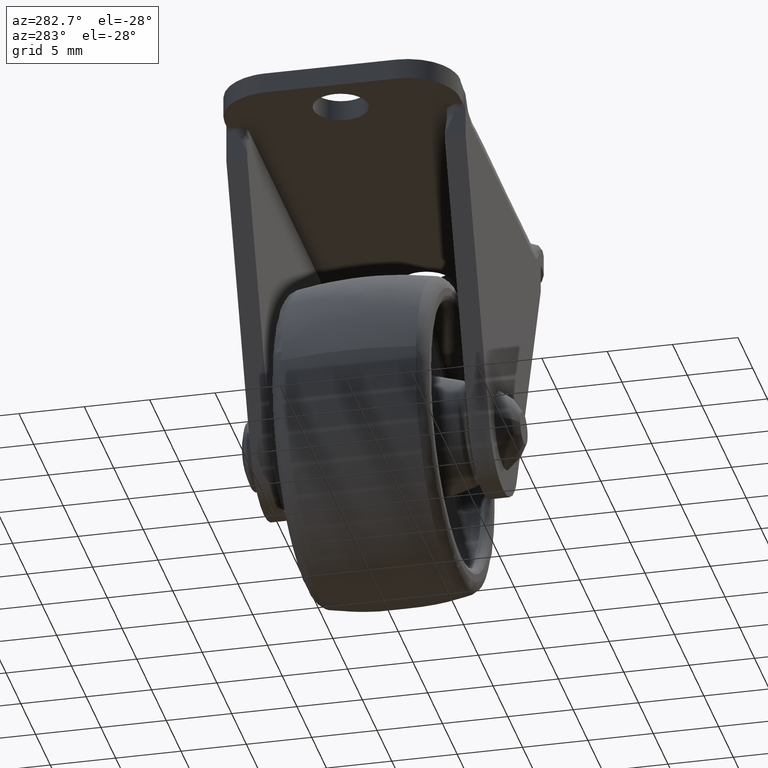
[diagram: clean part render]
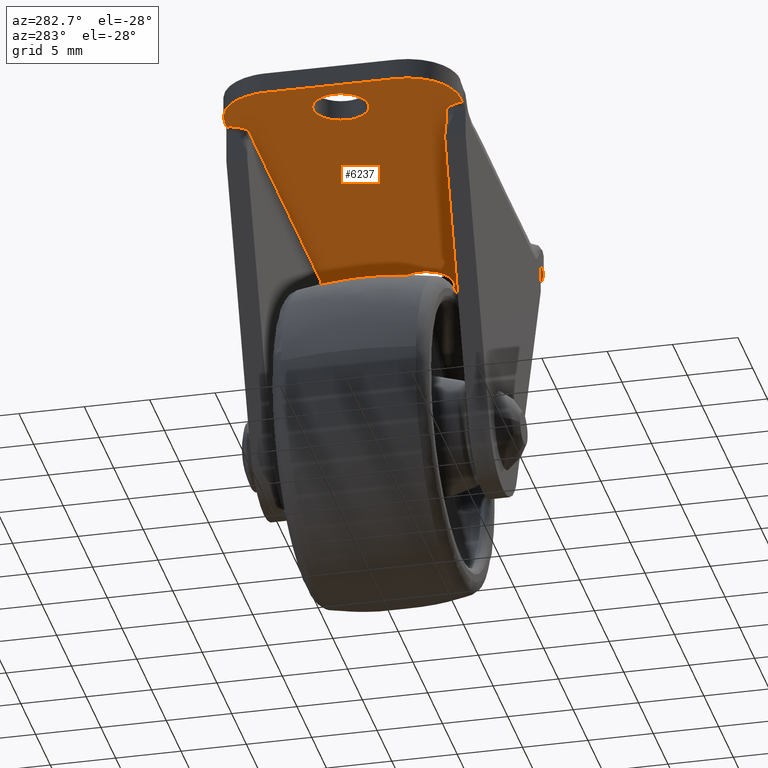
[diagram: same view with one face highlighted and labeled with its STEP entity id]
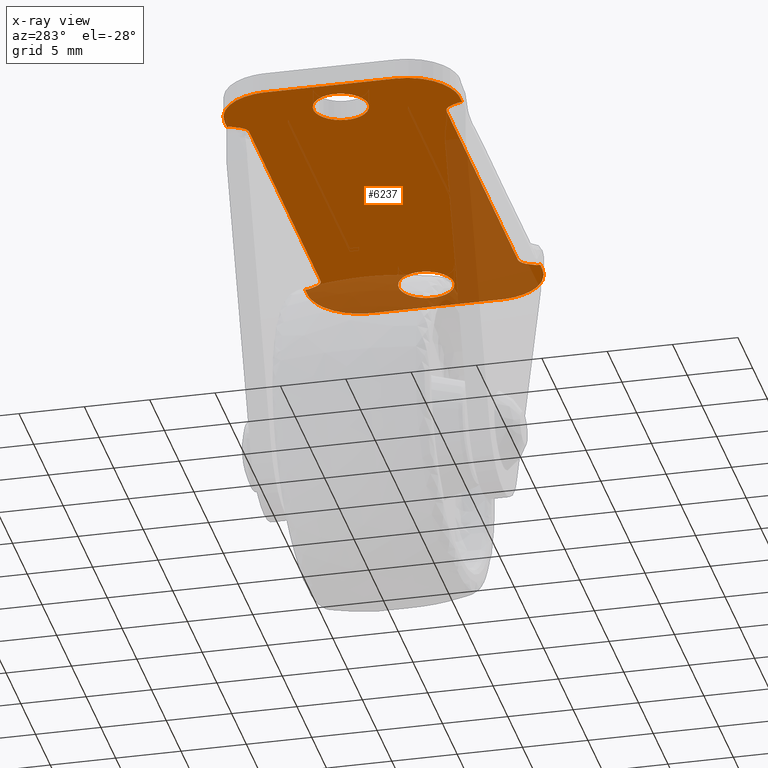
[diagram: x-ray of the same camera — body ghosted, the highlighted face saturated]
A machine part, auxiliary view. The second image highlights one B-rep face of the part: STEP entity #6237.
The next image is the same camera in x-ray: the body ghosted, the highlighted face saturated — about 25% of this face is hidden behind the body in this view.
In plain terms, the highlighted face is a freeform B-spline surface patch.
Its self-contained STEP definition (entity closure, byte-faithful):
#3199=CARTESIAN_POINT('',(-14.747871892840189,-2.085320005356449,20.899999999999999));
#3200=VERTEX_POINT('',#3199);
#3201=CARTESIAN_POINT('',(-12.400000000000000,0.0,20.899999999999999));
#3202=VERTEX_POINT('',#3201);
#3203=CARTESIAN_POINT('',(-14.747871892840186,-2.085320005356449,20.899999999999995));
#3204=CARTESIAN_POINT('',(-14.624370651330652,-2.100000000000000,20.899999999999999));
#3205=CARTESIAN_POINT('',(-14.500000000000000,-2.100000000000000,20.899999999999999));
#3206=CARTESIAN_POINT('',(-12.400000000000002,-2.100000000000000,20.899999999999995));
#3207=CARTESIAN_POINT('',(-12.400000000000000,0.0,20.899999999999999));
#3215=(BOUNDED_CURVE()B_SPLINE_CURVE(2,(#3203,#3204,#3205,#3206,#3207),.UNSPECIFIED.,.F.,.U.)B_SPLINE_CURVE_WITH_KNOTS((3,2,3),(0.229562473505758,0.250000000000000,0.500000000000000),.UNSPECIFIED.)CURVE()GEOMETRIC_REPRESENTATION_ITEM()RATIONAL_B_SPLINE_CURVE((0.956026754168508,0.976055948322065,1.0,0.707106781186548,1.0))REPRESENTATION_ITEM(''));
#3216=EDGE_CURVE('',#3200,#3202,#3215,.T.);
#3257=CARTESIAN_POINT('',(-14.371798066948950,2.096083076684217,20.899999999999999));
#3258=VERTEX_POINT('',#3257);
#3264=CARTESIAN_POINT('',(-12.400000000000000,0.0,20.899999999999999));
#3265=CARTESIAN_POINT('',(-12.400000000000002,1.975482740449377,20.899999999999999));
#3266=CARTESIAN_POINT('',(-14.371798066948953,2.096083076684217,20.899999999999999));
#3274=(BOUNDED_CURVE()B_SPLINE_CURVE(2,(#3264,#3265,#3266),.UNSPECIFIED.,.F.,.U.)B_SPLINE_CURVE_WITH_KNOTS((3,3),(0.500000000000000,0.739332962237384),.UNSPECIFIED.)CURVE()GEOMETRIC_REPRESENTATION_ITEM()RATIONAL_B_SPLINE_CURVE((1.0,0.719603993288536,0.976072041663377))REPRESENTATION_ITEM(''));
#3275=EDGE_CURVE('',#3202,#3258,#3274,.T.);
#3298=CARTESIAN_POINT('',(-16.600000000000001,0.0,20.899999999999999));
#3299=VERTEX_POINT('',#3298);
#3300=CARTESIAN_POINT('',(-16.600000000000001,0.0,20.899999999999999));
#3301=CARTESIAN_POINT('',(-16.599999999999991,-1.865166504387994,20.899999999999995));
#3302=CARTESIAN_POINT('',(-14.747871892840186,-2.085320005356449,20.899999999999995));
#3310=(BOUNDED_CURVE()B_SPLINE_CURVE(2,(#3300,#3301,#3302),.UNSPECIFIED.,.F.,.U.)B_SPLINE_CURVE_WITH_KNOTS((3,3),(0.0,0.229562473505758),.UNSPECIFIED.)CURVE()GEOMETRIC_REPRESENTATION_ITEM()RATIONAL_B_SPLINE_CURVE((1.0,0.731050832864483,0.956026754168508))REPRESENTATION_ITEM(''));
#3311=EDGE_CURVE('',#3299,#3200,#3310,.T.);
#3313=CARTESIAN_POINT('',(-14.371798066948951,2.096083076684217,20.900000000000002));
#3314=CARTESIAN_POINT('',(-14.435839197045032,2.100000000000000,20.899999999999999));
#3315=CARTESIAN_POINT('',(-14.500000000000000,2.100000000000000,20.899999999999999));
#3316=CARTESIAN_POINT('',(-16.600000000000001,2.100000000000000,20.899999999999995));
#3317=CARTESIAN_POINT('',(-16.600000000000001,0.0,20.899999999999999));
#3325=(BOUNDED_CURVE()B_SPLINE_CURVE(2,(#3313,#3314,#3315,#3316,#3317),.UNSPECIFIED.,.F.,.U.)B_SPLINE_CURVE_WITH_KNOTS((3,2,3),(0.739332962237383,0.750000000000000,1.0),.UNSPECIFIED.)CURVE()GEOMETRIC_REPRESENTATION_ITEM()RATIONAL_B_SPLINE_CURVE((0.976072041663375,0.987502787898010,1.0,0.707106781186548,1.0))REPRESENTATION_ITEM(''));
#3326=EDGE_CURVE('',#3258,#3299,#3325,.T.);
#3385=CARTESIAN_POINT('',(14.252128107159811,-2.085320005356449,20.899999999999999));
#3386=VERTEX_POINT('',#3385);
#3387=CARTESIAN_POINT('',(16.600000000000001,0.0,20.899999999999999));
#3388=VERTEX_POINT('',#3387);
#3389=CARTESIAN_POINT('',(14.252128107159818,-2.085320005356449,20.899999999999995));
#3390=CARTESIAN_POINT('',(14.375629348669351,-2.100000000000000,20.899999999999995));
#3391=CARTESIAN_POINT('',(14.500000000000000,-2.100000000000000,20.899999999999999));
#3392=CARTESIAN_POINT('',(16.600000000000001,-2.100000000000000,20.899999999999995));
#3393=CARTESIAN_POINT('',(16.600000000000001,0.0,20.899999999999999));
#3401=(BOUNDED_CURVE()B_SPLINE_CURVE(2,(#3389,#3390,#3391,#3392,#3393),.UNSPECIFIED.,.F.,.U.)B_SPLINE_CURVE_WITH_KNOTS((3,2,3),(0.229562473505758,0.250000000000000,0.500000000000000),.UNSPECIFIED.)CURVE()GEOMETRIC_REPRESENTATION_ITEM()RATIONAL_B_SPLINE_CURVE((0.956026754168508,0.976055948322065,1.0,0.707106781186548,1.0))REPRESENTATION_ITEM(''));
#3402=EDGE_CURVE('',#3386,#3388,#3401,.T.);
#3443=CARTESIAN_POINT('',(14.628201933051050,2.096083076684217,20.899999999999999));
#3444=VERTEX_POINT('',#3443);
#3450=CARTESIAN_POINT('',(16.600000000000001,0.0,20.899999999999999));
#3451=CARTESIAN_POINT('',(16.600000000000009,1.975482740449377,20.899999999999999));
#3452=CARTESIAN_POINT('',(14.628201933051054,2.096083076684217,20.899999999999999));
#3460=(BOUNDED_CURVE()B_SPLINE_CURVE(2,(#3450,#3451,#3452),.UNSPECIFIED.,.F.,.U.)B_SPLINE_CURVE_WITH_KNOTS((3,3),(0.500000000000000,0.739332962237384),.UNSPECIFIED.)CURVE()GEOMETRIC_REPRESENTATION_ITEM()RATIONAL_B_SPLINE_CURVE((1.0,0.719603993288536,0.976072041663377))REPRESENTATION_ITEM(''));
#3461=EDGE_CURVE('',#3388,#3444,#3460,.T.);
#3484=CARTESIAN_POINT('',(12.400000000000000,0.0,20.899999999999999));
#3485=VERTEX_POINT('',#3484);
#3486=CARTESIAN_POINT('',(12.400000000000000,0.0,20.899999999999999));
#3487=CARTESIAN_POINT('',(12.400000000000002,-1.865166504387995,20.899999999999999));
#3488=CARTESIAN_POINT('',(14.252128107159818,-2.085320005356449,20.899999999999995));
#3496=(BOUNDED_CURVE()B_SPLINE_CURVE(2,(#3486,#3487,#3488),.UNSPECIFIED.,.F.,.U.)B_SPLINE_CURVE_WITH_KNOTS((3,3),(0.0,0.229562473505758),.UNSPECIFIED.)CURVE()GEOMETRIC_REPRESENTATION_ITEM()RATIONAL_B_SPLINE_CURVE((1.0,0.731050832864483,0.956026754168508))REPRESENTATION_ITEM(''));
#3497=EDGE_CURVE('',#3485,#3386,#3496,.T.);
#3499=CARTESIAN_POINT('',(14.628201933051050,2.096083076684217,20.899999999999995));
#3500=CARTESIAN_POINT('',(14.564160802954966,2.100000000000001,20.899999999999999));
#3501=CARTESIAN_POINT('',(14.500000000000000,2.100000000000000,20.899999999999999));
#3502=CARTESIAN_POINT('',(12.400000000000002,2.100000000000000,20.899999999999995));
#3503=CARTESIAN_POINT('',(12.400000000000000,0.0,20.899999999999999));
#3511=(BOUNDED_CURVE()B_SPLINE_CURVE(2,(#3499,#3500,#3501,#3502,#3503),.UNSPECIFIED.,.F.,.U.)B_SPLINE_CURVE_WITH_KNOTS((3,2,3),(0.739332962237383,0.750000000000000,1.0),.UNSPECIFIED.)CURVE()GEOMETRIC_REPRESENTATION_ITEM()RATIONAL_B_SPLINE_CURVE((0.976072041663375,0.987502787898010,1.0,0.707106781186548,1.0))REPRESENTATION_ITEM(''));
#3512=EDGE_CURVE('',#3444,#3485,#3511,.T.);
#4312=CARTESIAN_POINT('',(13.250213774192320,-8.749660680194220,20.899999999999999));
#4313=VERTEX_POINT('',#4312);
#4314=CARTESIAN_POINT('',(12.106813741930900,-7.550002999999999,20.899999999999999));
#4315=VERTEX_POINT('',#4314);
#4316=CARTESIAN_POINT('',(13.250213774192320,-8.749660680194220,20.899999999999999));
#4317=CARTESIAN_POINT('',(13.243333433699931,-8.744625844376778,20.899999999999999));
#4318=CARTESIAN_POINT('',(13.160699706042109,-8.549314489362786,20.899999999999999));
#4319=CARTESIAN_POINT('',(13.113699381372220,-8.438225502364864,20.899999999999999));
#4320=CARTESIAN_POINT('',(13.070129329789539,-8.347704493122189,20.899999999999999));
#4321=CARTESIAN_POINT('',(12.961199689278720,-8.121392596825920,20.899999999999999));
#4322=CARTESIAN_POINT('',(12.846032945229430,-7.968434255209451,20.899999999999999));
#4323=CARTESIAN_POINT('',(12.532106710516310,-7.551494133752481,20.899999999999999));
#4324=CARTESIAN_POINT('',(12.106813741930900,-7.550002999999999,20.899999999999999));
#4325=B_SPLINE_CURVE_WITH_KNOTS('',2,(#4316,#4317,#4318,#4319,#4320,#4321,#4322,#4323,#4324),.UNSPECIFIED.,.F.,.U.,(3,2,2,2,3),(0.002884036529419,0.125000000000000,0.250000000000000,0.500000000000000,1.0),.UNSPECIFIED.);
#4326=EDGE_CURVE('',#4313,#4315,#4325,.T.);
#4490=CARTESIAN_POINT('',(12.106813741931679,7.550002999999999,20.899999999999999));
#4491=VERTEX_POINT('',#4490);
#4492=CARTESIAN_POINT('',(13.250000000000000,8.749938907571700,20.899999999999999));
#4493=VERTEX_POINT('',#4492);
#4494=CARTESIAN_POINT('',(12.106813741931679,7.550002999999999,20.899999999999999));
#4495=CARTESIAN_POINT('',(12.531601415359249,7.551542299118970,20.899999999999999));
#4496=CARTESIAN_POINT('',(12.845258806070341,7.967682461193636,20.899999999999999));
#4497=CARTESIAN_POINT('',(12.960684208713589,8.120821354731961,20.899999999999999));
#4498=CARTESIAN_POINT('',(13.069802571349930,8.347566664742276,20.899999999999999));
#4499=CARTESIAN_POINT('',(13.113430573734590,8.438224595147609,20.899999999999999));
#4500=CARTESIAN_POINT('',(13.160492325643180,8.549509366866740,20.899999999999999));
#4501=CARTESIAN_POINT('',(13.243118451500310,8.744891586632354,20.899999999999999));
#4502=CARTESIAN_POINT('',(13.250000000000000,8.749938907571700,20.899999999999999));
#4503=B_SPLINE_CURVE_WITH_KNOTS('',2,(#4494,#4495,#4496,#4497,#4498,#4499,#4500,#4501,#4502),.UNSPECIFIED.,.F.,.U.,(3,2,2,2,3),(0.0,0.500000000000000,0.750000000000000,0.875000000000000,0.997109260626873),.UNSPECIFIED.);
#4504=EDGE_CURVE('',#4491,#4493,#4503,.T.);
#4669=CARTESIAN_POINT('',(-12.106813741928899,-7.550002999999999,20.899999999999999));
#4670=VERTEX_POINT('',#4669);
#4671=CARTESIAN_POINT('',(-13.250000000000000,-8.749938907569371,20.899999999999999));
#4672=VERTEX_POINT('',#4671);
#4673=CARTESIAN_POINT('',(-12.106813741928899,-7.550002999999999,20.899999999999999));
#4674=CARTESIAN_POINT('',(-12.531601415358750,-7.551542299118941,20.899999999999999));
#4675=CARTESIAN_POINT('',(-12.845258806068861,-7.967682461192415,20.899999999999999));
#4676=CARTESIAN_POINT('',(-12.960684208710489,-8.120821354728809,20.899999999999999));
#4677=CARTESIAN_POINT('',(-13.069802571348371,-8.347566664742109,20.899999999999999));
#4678=CARTESIAN_POINT('',(-13.113430573733741,-8.438224595148546,20.899999999999999));
#4679=CARTESIAN_POINT('',(-13.160492325642110,-8.549509366865539,20.899999999999999));
#4680=CARTESIAN_POINT('',(-13.243118451497329,-8.744891586626164,20.899999999999999));
#4681=CARTESIAN_POINT('',(-13.250000000000000,-8.749938907569371,20.899999999999999));
#4682=B_SPLINE_CURVE_WITH_KNOTS('',2,(#4673,#4674,#4675,#4676,#4677,#4678,#4679,#4680,#4681),.UNSPECIFIED.,.F.,.U.,(3,2,2,2,3),(0.0,0.500000000000000,0.750000000000000,0.875000000000000,0.997109260624386),.UNSPECIFIED.);
#4683=EDGE_CURVE('',#4670,#4672,#4682,.T.);
#4848=CARTESIAN_POINT('',(-13.250213774192581,8.749660680191710,20.899999999999999));
#4849=VERTEX_POINT('',#4848);
#4850=CARTESIAN_POINT('',(-12.106813741919900,7.550002999999999,20.899999999999999));
#4851=VERTEX_POINT('',#4850);
#4852=CARTESIAN_POINT('',(-13.250213774192581,8.749660680191710,20.899999999999999));
#4853=CARTESIAN_POINT('',(-13.243333433697050,8.744625844369926,20.899999999999999));
#4854=CARTESIAN_POINT('',(-13.160699706041060,8.549314489363669,20.900000000000009));
#4855=CARTESIAN_POINT('',(-13.113699381370949,8.438225502366940,20.900000000000009));
#4856=CARTESIAN_POINT('',(-13.070129329787990,8.347704493125336,20.900000000000009));
#4857=CARTESIAN_POINT('',(-12.961199689275601,8.121392596828345,20.899999999999999));
#4858=CARTESIAN_POINT('',(-12.846032945228290,7.968434255214026,20.899999999999999));
#4859=CARTESIAN_POINT('',(-12.532106710512229,7.551494133752295,20.899999999999999));
#4860=CARTESIAN_POINT('',(-12.106813741919900,7.550002999999999,20.899999999999999));
#4861=B_SPLINE_CURVE_WITH_KNOTS('',2,(#4852,#4853,#4854,#4855,#4856,#4857,#4858,#4859,#4860),.UNSPECIFIED.,.F.,.U.,(3,2,2,2,3),(0.002884036532327,0.125000000000000,0.250000000000000,0.500000000000000,1.0),.UNSPECIFIED.);
#4862=EDGE_CURVE('',#4849,#4851,#4861,.T.);
#5247=CARTESIAN_POINT('',(-13.250000000000000,-9.000358720518891,20.899999999999999));
#5248=VERTEX_POINT('',#5247);
#5249=CARTESIAN_POINT('',(-13.250000000000000,-8.749938907569371,20.899999999999999));
#5250=CARTESIAN_POINT('',(-13.250000000000000,-9.000358720518891,20.899999999999999));
#5251=QUASI_UNIFORM_CURVE('',1,(#5249,#5250),.UNSPECIFIED.,.F.,.U.);
#5252=EDGE_CURVE('',#4672,#5248,#5251,.T.);
#5310=CARTESIAN_POINT('',(-13.250000000000000,9.000358720519001,20.899999999999999));
#5311=VERTEX_POINT('',#5310);
#5312=CARTESIAN_POINT('',(-13.250000000000000,9.000358720519001,20.899999999999999));
#5313=CARTESIAN_POINT('',(-13.250213774192581,8.749660680191710,20.899999999999999));
#5314=QUASI_UNIFORM_CURVE('',1,(#5312,#5313),.UNSPECIFIED.,.F.,.U.);
#5315=EDGE_CURVE('',#5311,#4849,#5314,.T.);
#5357=CARTESIAN_POINT('',(13.250000000000000,9.000358720519001,20.899999999999999));
#5358=VERTEX_POINT('',#5357);
#5359=CARTESIAN_POINT('',(13.250000000000000,8.749938907571700,20.899999999999999));
#5360=CARTESIAN_POINT('',(13.250000000000000,9.000358720519001,20.899999999999999));
#5361=QUASI_UNIFORM_CURVE('',1,(#5359,#5360),.UNSPECIFIED.,.F.,.U.);
#5362=EDGE_CURVE('',#4493,#5358,#5361,.T.);
#5420=CARTESIAN_POINT('',(13.250000000000000,-9.000358720518891,20.899999999999999));
#5421=VERTEX_POINT('',#5420);
#5422=CARTESIAN_POINT('',(13.250000000000000,-9.000358720518891,20.899999999999999));
#5423=CARTESIAN_POINT('',(13.250213774192320,-8.749660680194220,20.899999999999999));
#5424=QUASI_UNIFORM_CURVE('',1,(#5422,#5423),.UNSPECIFIED.,.F.,.U.);
#5425=EDGE_CURVE('',#5421,#4313,#5424,.T.);
#5813=CARTESIAN_POINT('',(-13.276782687642701,9.000000000000108,20.899999999999999));
#5814=VERTEX_POINT('',#5813);
#5827=CARTESIAN_POINT('',(-13.276782687642701,9.000000000000108,20.899999999999999));
#5828=CARTESIAN_POINT('',(-13.263388941515569,9.000000000000002,20.899999999999995));
#5829=CARTESIAN_POINT('',(-13.250000000000000,9.000358720519001,20.899999999999999));
#5837=(BOUNDED_CURVE()B_SPLINE_CURVE(2,(#5827,#5828,#5829),.UNSPECIFIED.,.F.,.U.)CURVE()GEOMETRIC_REPRESENTATION_ITEM()QUASI_UNIFORM_CURVE()RATIONAL_B_SPLINE_CURVE((1.0,0.999910315848654,1.0))REPRESENTATION_ITEM(''));
#5838=EDGE_CURVE('',#5814,#5311,#5837,.T.);
#5863=CARTESIAN_POINT('',(13.276782687642600,9.000000000000108,20.899999999999999));
#5864=VERTEX_POINT('',#5863);
#5870=CARTESIAN_POINT('',(13.250000000000000,9.000358720519001,20.899999999999999));
#5871=CARTESIAN_POINT('',(13.263388941515510,9.000000000000002,20.900000000000006));
#5872=CARTESIAN_POINT('',(13.276782687642600,9.000000000000108,20.899999999999999));
#5880=(BOUNDED_CURVE()B_SPLINE_CURVE(2,(#5870,#5871,#5872),.UNSPECIFIED.,.F.,.U.)CURVE()GEOMETRIC_REPRESENTATION_ITEM()QUASI_UNIFORM_CURVE()RATIONAL_B_SPLINE_CURVE((1.0,0.999910315848655,1.0))REPRESENTATION_ITEM(''));
#5881=EDGE_CURVE('',#5358,#5864,#5880,.T.);
#5907=CARTESIAN_POINT('',(-13.276782687642880,-9.0,20.899999999999999));
#5908=VERTEX_POINT('',#5907);
#5914=CARTESIAN_POINT('',(-13.250000000000000,-9.000358720518895,20.899999999999999));
#5915=CARTESIAN_POINT('',(-13.263388941515661,-9.000000000000002,20.899999999999995));
#5916=CARTESIAN_POINT('',(-13.276782687642880,-9.000000000000002,20.899999999999999));
#5924=(BOUNDED_CURVE()B_SPLINE_CURVE(2,(#5914,#5915,#5916),.UNSPECIFIED.,.F.,.U.)CURVE()GEOMETRIC_REPRESENTATION_ITEM()QUASI_UNIFORM_CURVE()RATIONAL_B_SPLINE_CURVE((1.0,0.999910315848653,1.0))REPRESENTATION_ITEM(''));
#5925=EDGE_CURVE('',#5248,#5908,#5924,.T.);
#5945=CARTESIAN_POINT('',(13.276782687642800,-9.0,20.899999999999999));
#5946=VERTEX_POINT('',#5945);
#5959=CARTESIAN_POINT('',(13.276782687642800,-9.000000000000002,20.899999999999999));
#5960=CARTESIAN_POINT('',(13.263388941515625,-9.000000000000002,20.899999999999999));
#5961=CARTESIAN_POINT('',(13.250000000000000,-9.000358720518891,20.899999999999999));
#5969=(BOUNDED_CURVE()B_SPLINE_CURVE(2,(#5959,#5960,#5961),.UNSPECIFIED.,.F.,.U.)CURVE()GEOMETRIC_REPRESENTATION_ITEM()QUASI_UNIFORM_CURVE()RATIONAL_B_SPLINE_CURVE((1.0,0.999910315848654,1.0))REPRESENTATION_ITEM(''));
#5970=EDGE_CURVE('',#5946,#5421,#5969,.T.);
#6098=CARTESIAN_POINT('',(19.798198025823389,-9.899494352831992,20.899999999999999));
#6099=CARTESIAN_POINT('',(-19.798197060227999,-9.899494352831992,20.899999999999999));
#6100=CARTESIAN_POINT('',(19.798198025823389,9.899494996587922,20.899999999999999));
#6101=CARTESIAN_POINT('',(-19.798197060227999,9.899494996587922,20.899999999999999));
#6102=B_SPLINE_SURFACE_WITH_KNOTS('',1,1,((#6098,#6100),(#6099,#6101)),.UNSPECIFIED.,.F.,.F.,.U.,(2,2),(2,2),(0.0,39.596395086051388),(0.0,19.798989349419909),.UNSPECIFIED.);
#6103=ORIENTED_EDGE('',*,*,#5970,.T.);
#6104=ORIENTED_EDGE('',*,*,#5425,.T.);
#6105=ORIENTED_EDGE('',*,*,#4326,.T.);
#6106=CARTESIAN_POINT('',(-12.106813741928899,-7.550002999999999,20.899999999999999));
#6107=CARTESIAN_POINT('',(12.106813741930900,-7.550002999999999,20.899999999999999));
#6108=QUASI_UNIFORM_CURVE('',1,(#6106,#6107),.UNSPECIFIED.,.F.,.U.);
#6109=EDGE_CURVE('',#4670,#4315,#6108,.T.);
#6110=ORIENTED_EDGE('',*,*,#6109,.F.);
#6111=ORIENTED_EDGE('',*,*,#4683,.T.);
#6112=ORIENTED_EDGE('',*,*,#5252,.T.);
#6113=ORIENTED_EDGE('',*,*,#5925,.T.);
#6114=CARTESIAN_POINT('',(-13.999998999999899,-9.0,20.899999999999999));
#6115=VERTEX_POINT('',#6114);
#6116=CARTESIAN_POINT('',(-13.276782687642880,-9.0,20.899999999999999));
#6117=CARTESIAN_POINT('',(-13.999998999999899,-9.0,20.899999999999999));
#6118=QUASI_UNIFORM_CURVE('',1,(#6116,#6117),.UNSPECIFIED.,.F.,.U.);
#6119=EDGE_CURVE('',#5908,#6115,#6118,.T.);
#6120=ORIENTED_EDGE('',*,*,#6119,.T.);
#6121=CARTESIAN_POINT('',(-17.999998999999899,-5.000003490658540,20.899999999999999));
#6122=VERTEX_POINT('',#6121);
#6123=CARTESIAN_POINT('',(-17.999998999999899,-5.000003490658540,20.899999999999999));
#6124=CARTESIAN_POINT('',(-17.999995509342885,-9.000000000000002,20.899999999999999));
#6125=CARTESIAN_POINT('',(-13.999998999999899,-9.000000000000002,20.899999999999999));
#6133=(BOUNDED_CURVE()B_SPLINE_CURVE(2,(#6123,#6124,#6125),.UNSPECIFIED.,.F.,.U.)CURVE()GEOMETRIC_REPRESENTATION_ITEM()QUASI_UNIFORM_CURVE()RATIONAL_B_SPLINE_CURVE((1.0,0.707107089720021,1.0))REPRESENTATION_ITEM(''));
#6134=EDGE_CURVE('',#6122,#6115,#6133,.T.);
#6135=ORIENTED_EDGE('',*,*,#6134,.F.);
#6136=CARTESIAN_POINT('',(-17.999998999999899,5.000000000000110,20.899999999999999));
#6137=VERTEX_POINT('',#6136);
#6138=CARTESIAN_POINT('',(-17.999998999999899,5.000000000000110,20.899999999999999));
#6139=CARTESIAN_POINT('',(-17.999998999999899,-5.000003490658540,20.899999999999999));
#6140=QUASI_UNIFORM_CURVE('',1,(#6138,#6139),.UNSPECIFIED.,.F.,.U.);
#6141=EDGE_CURVE('',#6137,#6122,#6140,.T.);
#6142=ORIENTED_EDGE('',*,*,#6141,.F.);
#6143=CARTESIAN_POINT('',(-13.999998999999899,9.000000000000108,20.899999999999999));
#6144=VERTEX_POINT('',#6143);
#6145=CARTESIAN_POINT('',(-13.999998999999899,9.000000000000110,20.899999999999999));
#6146=CARTESIAN_POINT('',(-17.999998999999896,9.000000000000110,20.899999999999995));
#6147=CARTESIAN_POINT('',(-17.999998999999899,5.000000000000110,20.899999999999999));
#6155=(BOUNDED_CURVE()B_SPLINE_CURVE(2,(#6145,#6146,#6147),.UNSPECIFIED.,.F.,.U.)CURVE()GEOMETRIC_REPRESENTATION_ITEM()QUASI_UNIFORM_CURVE()RATIONAL_B_SPLINE_CURVE((1.0,0.707106781186548,1.0))REPRESENTATION_ITEM(''));
#6156=EDGE_CURVE('',#6144,#6137,#6155,.T.);
#6157=ORIENTED_EDGE('',*,*,#6156,.F.);
#6158=CARTESIAN_POINT('',(-13.999998999999899,9.000000000000108,20.899999999999999));
#6159=CARTESIAN_POINT('',(-13.276782687642701,9.000000000000108,20.899999999999999));
#6160=QUASI_UNIFORM_CURVE('',1,(#6158,#6159),.UNSPECIFIED.,.F.,.U.);
#6161=EDGE_CURVE('',#6144,#5814,#6160,.T.);
#6162=ORIENTED_EDGE('',*,*,#6161,.T.);
#6163=ORIENTED_EDGE('',*,*,#5838,.T.);
#6164=ORIENTED_EDGE('',*,*,#5315,.T.);
#6165=ORIENTED_EDGE('',*,*,#4862,.T.);
#6166=CARTESIAN_POINT('',(-12.106813741919900,7.550002999999999,20.899999999999999));
#6167=CARTESIAN_POINT('',(12.106813741931679,7.550002999999999,20.899999999999999));
#6168=QUASI_UNIFORM_CURVE('',1,(#6166,#6167),.UNSPECIFIED.,.F.,.U.);
#6169=EDGE_CURVE('',#4851,#4491,#6168,.T.);
#6170=ORIENTED_EDGE('',*,*,#6169,.T.);
#6171=ORIENTED_EDGE('',*,*,#4504,.T.);
#6172=ORIENTED_EDGE('',*,*,#5362,.T.);
#6173=ORIENTED_EDGE('',*,*,#5881,.T.);
#6174=CARTESIAN_POINT('',(13.999999000000001,9.000000000000108,20.899999999999999));
#6175=VERTEX_POINT('',#6174);
#6176=CARTESIAN_POINT('',(13.276782687642600,9.000000000000108,20.899999999999999));
#6177=CARTESIAN_POINT('',(13.999999000000001,9.000000000000108,20.899999999999999));
#6178=QUASI_UNIFORM_CURVE('',1,(#6176,#6177),.UNSPECIFIED.,.F.,.U.);
#6179=EDGE_CURVE('',#5864,#6175,#6178,.T.);
#6180=ORIENTED_EDGE('',*,*,#6179,.T.);
#6181=CARTESIAN_POINT('',(17.999999000000098,5.000003490658660,20.899999999999999));
#6182=VERTEX_POINT('',#6181);
#6183=CARTESIAN_POINT('',(17.999999000000098,5.000003490658660,20.899999999999999));
#6184=CARTESIAN_POINT('',(17.999995509342980,9.000000000000110,20.899999999999999));
#6185=CARTESIAN_POINT('',(13.999999000000001,9.000000000000110,20.899999999999999));
#6193=(BOUNDED_CURVE()B_SPLINE_CURVE(2,(#6183,#6184,#6185),.UNSPECIFIED.,.F.,.U.)CURVE()GEOMETRIC_REPRESENTATION_ITEM()QUASI_UNIFORM_CURVE()RATIONAL_B_SPLINE_CURVE((1.0,0.707107089720022,1.0))REPRESENTATION_ITEM(''));
#6194=EDGE_CURVE('',#6182,#6175,#6193,.T.);
#6195=ORIENTED_EDGE('',*,*,#6194,.F.);
#6196=CARTESIAN_POINT('',(17.999999000000098,-5.0,20.899999999999999));
#6197=VERTEX_POINT('',#6196);
#6198=CARTESIAN_POINT('',(17.999999000000098,5.000003490658660,20.899999999999999));
#6199=CARTESIAN_POINT('',(17.999999000000098,-5.0,20.899999999999999));
#6200=QUASI_UNIFORM_CURVE('',1,(#6198,#6199),.UNSPECIFIED.,.F.,.U.);
#6201=EDGE_CURVE('',#6182,#6197,#6200,.T.);
#6202=ORIENTED_EDGE('',*,*,#6201,.T.);
#6203=CARTESIAN_POINT('',(13.999999000000001,-9.0,20.899999999999999));
#6204=VERTEX_POINT('',#6203);
#6205=CARTESIAN_POINT('',(13.999999000000001,-9.000000000000002,20.899999999999999));
#6206=CARTESIAN_POINT('',(17.999999000000006,-9.000000000000002,20.899999999999995));
#6207=CARTESIAN_POINT('',(17.999999000000098,-5.0,20.899999999999999));
#6215=(BOUNDED_CURVE()B_SPLINE_CURVE(2,(#6205,#6206,#6207),.UNSPECIFIED.,.F.,.U.)CURVE()GEOMETRIC_REPRESENTATION_ITEM()QUASI_UNIFORM_CURVE()RATIONAL_B_SPLINE_CURVE((1.0,0.707106781186548,1.0))REPRESENTATION_ITEM(''));
#6216=EDGE_CURVE('',#6204,#6197,#6215,.T.);
#6217=ORIENTED_EDGE('',*,*,#6216,.F.);
#6218=CARTESIAN_POINT('',(13.999999000000001,-9.0,20.899999999999999));
#6219=CARTESIAN_POINT('',(13.276782687642800,-9.0,20.899999999999999));
#6220=QUASI_UNIFORM_CURVE('',1,(#6218,#6219),.UNSPECIFIED.,.F.,.U.);
#6221=EDGE_CURVE('',#6204,#5946,#6220,.T.);
#6222=ORIENTED_EDGE('',*,*,#6221,.T.);
#6223=EDGE_LOOP('',(#6103,#6104,#6105,#6110,#6111,#6112,#6113,#6120,#6135,#6142,#6157,#6162,#6163,#6164,#6165,#6170,#6171,#6172,#6173,#6180,#6195,#6202,#6217,#6222));
#6224=FACE_OUTER_BOUND('',#6223,.T.);
#6225=ORIENTED_EDGE('',*,*,#3461,.T.);
#6226=ORIENTED_EDGE('',*,*,#3512,.T.);
#6227=ORIENTED_EDGE('',*,*,#3497,.T.);
#6228=ORIENTED_EDGE('',*,*,#3402,.T.);
#6229=EDGE_LOOP('',(#6225,#6226,#6227,#6228));
#6230=FACE_BOUND('',#6229,.T.);
#6231=ORIENTED_EDGE('',*,*,#3275,.T.);
#6232=ORIENTED_EDGE('',*,*,#3326,.T.);
#6233=ORIENTED_EDGE('',*,*,#3311,.T.);
#6234=ORIENTED_EDGE('',*,*,#3216,.T.);
#6235=EDGE_LOOP('',(#6231,#6232,#6233,#6234));
#6236=FACE_BOUND('',#6235,.T.);
#6237=ADVANCED_FACE('',(#6224,#6230,#6236),#6102,.T.);